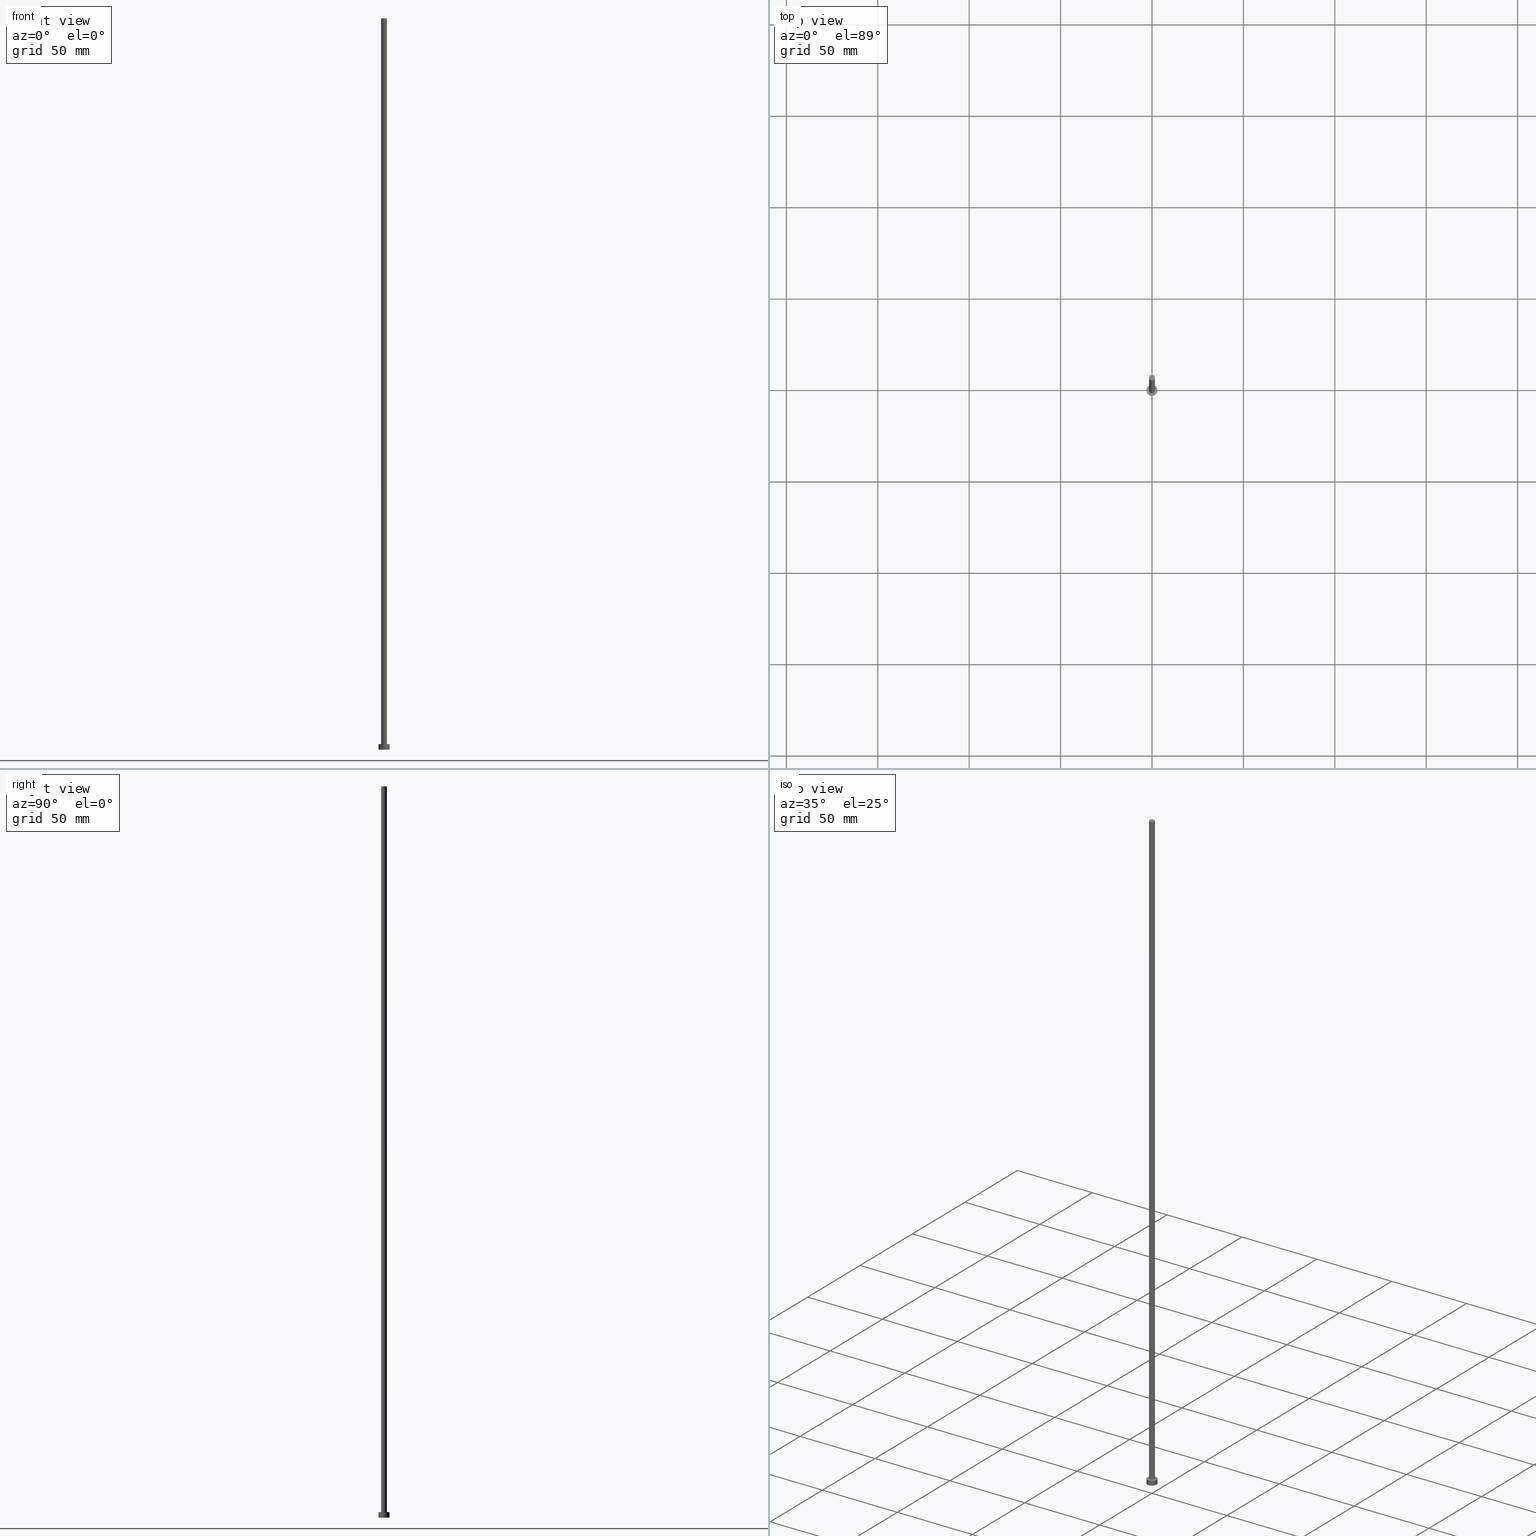
[diagram: canonical four-view strip — front | top / right | iso, engineering-drawing reading convention]
A machine part, canonical four-view strip (front | top / right | iso — engineering-drawing reading convention). The complete STEP part file that produces these views, byte-faithful:
ISO-10303-21;
HEADER;
FILE_DESCRIPTION (( 'STEP AP203' ),
    '1' );
FILE_NAME ('2eab.STEP',
    '2023-02-13T16:24:41',
    ( '' ),
    ( '' ),
    'SwSTEP 2.0',
    'SolidWorks 2019',
    '' );
FILE_SCHEMA (( 'CONFIG_CONTROL_DESIGN' ));
ENDSEC;

DATA;
#1 = PERSON ( 'NEUR�EN�', 'NEUR�EN�', 'NEUR�EN�', ('NEUR�EN�'), ('NEUR�EN�'), ('NEUR�EN�') ) ;
#2 = CIRCLE ( 'NONE', #216, 1.600000000000000089 ) ;
#3 = VERTEX_POINT ( 'NONE', #70 ) ;
#4 = APPROVAL_DATE_TIME ( #176, #106 ) ;
#5 = VERTEX_POINT ( 'NONE', #35 ) ;
#6 = ORIENTED_EDGE ( 'NONE', *, *, #242, .F. ) ;
#7 = AXIS2_PLACEMENT_3D ( 'NONE', #112, #246, #224 ) ;
#8 = ORIENTED_EDGE ( 'NONE', *, *, #85, .F. ) ;
#9 = CARTESIAN_POINT ( 'NONE',  ( 0.000000000000000000, 0.000000000000000000, 0.000000000000000000 ) ) ;
#10 = APPROVAL_ROLE ( '' ) ;
#11 = FACE_OUTER_BOUND ( 'NONE', #76, .T. ) ;
#12 = DIRECTION ( 'NONE',  ( 1.000000000000000000, 0.000000000000000000, 0.000000000000000000 ) ) ;
#13 = DIRECTION ( 'NONE',  ( 1.000000000000000000, 0.000000000000000000, 0.000000000000000000 ) ) ;
#14 = DIRECTION ( 'NONE',  ( 0.000000000000000000, 0.000000000000000000, 1.000000000000000000 ) ) ;
#15 = DIRECTION ( 'NONE',  ( 0.000000000000000000, 0.000000000000000000, 1.000000000000000000 ) ) ;
#16 = CC_DESIGN_APPROVAL ( #19, ( #166 ) ) ;
#17 = CARTESIAN_POINT ( 'NONE',  ( 0.000000000000000000, 0.000000000000000000, 3.000000000000000000 ) ) ;
#18 = ADVANCED_FACE ( 'NONE', ( #143, #47 ), #255, .T. ) ;
#19 = APPROVAL ( #29, 'NEUR�EN�' ) ;
#20 = PERSON_AND_ORGANIZATION ( #1, #91 ) ;
#21 = ADVANCED_FACE ( 'NONE', ( #31 ), #100, .F. ) ;
#22 = CALENDAR_DATE ( 2023, 13, 2 ) ;
#23 = VERTEX_POINT ( 'NONE', #180 ) ;
#24 = PERSON_AND_ORGANIZATION_ROLE ( 'creator' ) ;
#25 = PERSON_AND_ORGANIZATION ( #1, #91 ) ;
#26 = EDGE_LOOP ( 'NONE', ( #34, #56, #43, #97 ) ) ;
#27 = CIRCLE ( 'NONE', #37, 3.000000000000000444 ) ;
#28 = EDGE_CURVE ( 'NONE', #61, #69, #83, .T. ) ;
#29 = APPROVAL_STATUS ( 'not_yet_approved' ) ;
#30 = ORIENTED_EDGE ( 'NONE', *, *, #196, .T. ) ;
#31 = FACE_OUTER_BOUND ( 'NONE', #251, .T. ) ;
#32 = LOCAL_TIME ( 17, 24, 41.00000000000000000, #198 ) ;
#33 = DIRECTION ( 'NONE',  ( 1.000000000000000000, 0.000000000000000000, -0.000000000000000000 ) ) ;
#34 = ORIENTED_EDGE ( 'NONE', *, *, #204, .F. ) ;
#35 = CARTESIAN_POINT ( 'NONE',  ( 1.600000000000000089, 1.959434878635765230E-16, 400.0000000000000000 ) ) ;
#36 = CARTESIAN_POINT ( 'NONE',  ( 0.000000000000000000, 0.000000000000000000, 400.0000000000000000 ) ) ;
#37 = AXIS2_PLACEMENT_3D ( 'NONE', #223, #226, #249 ) ;
#38 = PERSON_AND_ORGANIZATION_ROLE ( 'design_supplier' ) ;
#39 =( NAMED_UNIT ( * ) PLANE_ANGLE_UNIT ( ) SI_UNIT ( $, .RADIAN. ) );
#40 = ORIENTED_EDGE ( 'NONE', *, *, #87, .F. ) ;
#41 = PERSON_AND_ORGANIZATION ( #1, #91 ) ;
#42 = LOCAL_TIME ( 17, 24, 41.00000000000000000, #142 ) ;
#43 = ORIENTED_EDGE ( 'NONE', *, *, #28, .T. ) ;
#44 = CARTESIAN_POINT ( 'NONE',  ( -3.000000000000000444, 0.000000000000000000, 0.000000000000000000 ) ) ;
#45 = ORIENTED_EDGE ( 'NONE', *, *, #87, .T. ) ;
#46 = APPROVAL_PERSON_ORGANIZATION ( #248, #106, #174 ) ;
#47 = FACE_OUTER_BOUND ( 'NONE', #58, .T. ) ;
#48 = CARTESIAN_POINT ( 'NONE',  ( 0.000000000000000000, 0.000000000000000000, 3.000000000000000000 ) ) ;
#49 = AXIS2_PLACEMENT_3D ( 'NONE', #17, #219, #107 ) ;
#50 = DIRECTION ( 'NONE',  ( -0.000000000000000000, -0.000000000000000000, -1.000000000000000000 ) ) ;
#51 = VECTOR ( 'NONE', #134, 1000.000000000000000 ) ;
#52 = FACE_OUTER_BOUND ( 'NONE', #207, .T. ) ;
#53 = AXIS2_PLACEMENT_3D ( 'NONE', #68, #145, #213 ) ;
#54 = LOCAL_TIME ( 17, 24, 41.00000000000000000, #119 ) ;
#55 = CALENDAR_DATE ( 2023, 13, 2 ) ;
#56 = ORIENTED_EDGE ( 'NONE', *, *, #196, .F. ) ;
#57 = MECHANICAL_CONTEXT ( 'NONE', #229, 'mechanical' ) ;
#58 = EDGE_LOOP ( 'NONE', ( #30, #235 ) ) ;
#59 = CIRCLE ( 'NONE', #222, 3.000000000000000444 ) ;
#60 = APPROVAL_STATUS ( 'not_yet_approved' ) ;
#61 = VERTEX_POINT ( 'NONE', #231 ) ;
#62 = PRODUCT ( '2eab', '2eab', '', ( #57 ) ) ;
#63 = EDGE_CURVE ( 'NONE', #114, #69, #239, .T. ) ;
#64 = PERSON_AND_ORGANIZATION_ROLE ( 'creator' ) ;
#65 = CALENDAR_DATE ( 2023, 13, 2 ) ;
#66 = ORIENTED_EDGE ( 'NONE', *, *, #130, .T. ) ;
#67 = DIRECTION ( 'NONE',  ( -0.000000000000000000, -0.000000000000000000, -1.000000000000000000 ) ) ;
#68 = CARTESIAN_POINT ( 'NONE',  ( 0.000000000000000000, 0.000000000000000000, 3.000000000000000000 ) ) ;
#69 = VERTEX_POINT ( 'NONE', #44 ) ;
#70 = CARTESIAN_POINT ( 'NONE',  ( 3.000000000000000444, 3.673940397442060361E-16, 3.000000000000000000 ) ) ;
#71 = CARTESIAN_POINT ( 'NONE',  ( 1.600000000000000089, 1.959434878635765230E-16, 400.0000000000000000 ) ) ;
#72 = DIRECTION ( 'NONE',  ( -1.000000000000000000, 0.000000000000000000, 0.000000000000000000 ) ) ;
#73 = AXIS2_PLACEMENT_3D ( 'NONE', #186, #252, #232 ) ;
#74 = APPROVAL_DATE_TIME ( #92, #177 ) ;
#75 = APPROVAL_ROLE ( '' ) ;
#76 = EDGE_LOOP ( 'NONE', ( #175, #45 ) ) ;
#77 = ORIENTED_EDGE ( 'NONE', *, *, #168, .T. ) ;
#78 = AXIS2_PLACEMENT_3D ( 'NONE', #9, #228, #138 ) ;
#79 = CARTESIAN_POINT ( 'NONE',  ( 0.000000000000000000, 0.000000000000000000, 400.0000000000000000 ) ) ;
#80 = ADVANCED_FACE ( 'NONE', ( #11 ), #103, .T. ) ;
#81 = LOCAL_TIME ( 17, 24, 41.00000000000000000, #206 ) ;
#82 = CARTESIAN_POINT ( 'NONE',  ( 0.000000000000000000, 0.000000000000000000, 3.000000000000000000 ) ) ;
#83 = LINE ( 'NONE', #122, #84 ) ;
#84 = VECTOR ( 'NONE', #167, 1000.000000000000000 ) ;
#85 = EDGE_CURVE ( 'NONE', #137, #5, #230, .T. ) ;
#86 = DIRECTION ( 'NONE',  ( 1.000000000000000000, 0.000000000000000000, 0.000000000000000000 ) ) ;
#87 = EDGE_CURVE ( 'NONE', #5, #137, #2, .T. ) ;
#88 = DIRECTION ( 'NONE',  ( -0.000000000000000000, -0.000000000000000000, -1.000000000000000000 ) ) ;
#89 = FACE_OUTER_BOUND ( 'NONE', #157, .T. ) ;
#90 = AXIS2_PLACEMENT_3D ( 'NONE', #116, #124, #33 ) ;
#91 = ORGANIZATION ( 'NEUR�EN�', 'NEUR�EN�', '' ) ;
#92 = DATE_AND_TIME ( #55, #32 ) ;
#93 = ORIENTED_EDGE ( 'NONE', *, *, #168, .F. ) ;
#94 = DATE_TIME_ROLE ( 'creation_date' ) ;
#95 = CLOSED_SHELL ( 'NONE', ( #188, #179, #109, #18, #21, #217, #80 ) ) ;
#96 = CALENDAR_DATE ( 2023, 13, 2 ) ;
#97 = ORIENTED_EDGE ( 'NONE', *, *, #242, .T. ) ;
#98 = ADVANCED_BREP_SHAPE_REPRESENTATION ( '2eab', ( #121, #78 ), #172 ) ;
#99 = CYLINDRICAL_SURFACE ( 'NONE', #7, 1.600000000000000089 ) ;
#100 = PLANE ( 'NONE',  #90 ) ;
#101 = AXIS2_PLACEMENT_3D ( 'NONE', #187, #15, #86 ) ;
#102 = DIRECTION ( 'NONE',  ( 0.000000000000000000, 0.000000000000000000, 1.000000000000000000 ) ) ;
#103 = PLANE ( 'NONE',  #73 ) ;
#104 = DIRECTION ( 'NONE',  ( -1.000000000000000000, 0.000000000000000000, 0.000000000000000000 ) ) ;
#105 = LINE ( 'NONE', #163, #125 ) ;
#106 = APPROVAL ( #60, 'NEUR�EN�' ) ;
#107 = DIRECTION ( 'NONE',  ( 1.000000000000000000, 0.000000000000000000, 0.000000000000000000 ) ) ;
#108 = DIRECTION ( 'NONE',  ( -0.000000000000000000, -0.000000000000000000, -1.000000000000000000 ) ) ;
#109 = ADVANCED_FACE ( 'NONE', ( #184 ), #164, .T. ) ;
#110 = APPROVAL_STATUS ( 'not_yet_approved' ) ;
#111 = CIRCLE ( 'NONE', #150, 1.600000000000000089 ) ;
#112 = CARTESIAN_POINT ( 'NONE',  ( 0.000000000000000000, 0.000000000000000000, 400.0000000000000000 ) ) ;
#113 = CC_DESIGN_DATE_AND_TIME_ASSIGNMENT ( #144, #209, ( #166 ) ) ;
#114 = VERTEX_POINT ( 'NONE', #234 ) ;
#115 = SECURITY_CLASSIFICATION_LEVEL ( 'unclassified' ) ;
#116 = CARTESIAN_POINT ( 'NONE',  ( 0.000000000000000000, 0.000000000000000000, 0.000000000000000000 ) ) ;
#117 = CARTESIAN_POINT ( 'NONE',  ( -1.600000000000000089, 0.000000000000000000, 400.0000000000000000 ) ) ;
#118 = UNCERTAINTY_MEASURE_WITH_UNIT (LENGTH_MEASURE( 1.000000000000000082E-05 ), #171, 'distance_accuracy_value', 'NONE');
#119 = COORDINATED_UNIVERSAL_TIME_OFFSET ( 1, 0, .AHEAD. ) ;
#120 = ORIENTED_EDGE ( 'NONE', *, *, #126, .T. ) ;
#121 = MANIFOLD_SOLID_BREP ( 'P�idat vysunut�m3', #95 ) ;
#122 = CARTESIAN_POINT ( 'NONE',  ( -3.000000000000000444, 0.000000000000000000, 3.000000000000000000 ) ) ;
#123 = DATE_AND_TIME ( #65, #54 ) ;
#124 = DIRECTION ( 'NONE',  ( 0.000000000000000000, 0.000000000000000000, 1.000000000000000000 ) ) ;
#125 = VECTOR ( 'NONE', #67, 1000.000000000000000 ) ;
#126 = EDGE_CURVE ( 'NONE', #137, #23, #105, .T. ) ;
#127 = CARTESIAN_POINT ( 'NONE',  ( 1.600000000000000089, 1.959434878635765230E-16, 3.000000000000000000 ) ) ;
#128 = CARTESIAN_POINT ( 'NONE',  ( 0.000000000000000000, 0.000000000000000000, 3.000000000000000000 ) ) ;
#129 = CC_DESIGN_DATE_AND_TIME_ASSIGNMENT ( #132, #94, ( #253 ) ) ;
#130 = EDGE_CURVE ( 'NONE', #23, #165, #111, .T. ) ;
#131 = CARTESIAN_POINT ( 'NONE',  ( 3.000000000000000444, 3.673940397442060361E-16, 3.000000000000000000 ) ) ;
#132 = DATE_AND_TIME ( #22, #243 ) ;
#133 = CC_DESIGN_PERSON_AND_ORGANIZATION_ASSIGNMENT ( #41, #38, ( #238 ) ) ;
#134 = DIRECTION ( 'NONE',  ( -0.000000000000000000, -0.000000000000000000, -1.000000000000000000 ) ) ;
#135 = ORIENTED_EDGE ( 'NONE', *, *, #126, .F. ) ;
#136 = VECTOR ( 'NONE', #50, 1000.000000000000000 ) ;
#137 = VERTEX_POINT ( 'NONE', #117 ) ;
#138 = DIRECTION ( 'NONE',  ( 1.000000000000000000, 0.000000000000000000, 0.000000000000000000 ) ) ;
#139 = PERSON_AND_ORGANIZATION ( #1, #91 ) ;
#140 = CIRCLE ( 'NONE', #49, 1.600000000000000089 ) ;
#141 = EDGE_CURVE ( 'NONE', #3, #61, #181, .T. ) ;
#142 = COORDINATED_UNIVERSAL_TIME_OFFSET ( 1, 0, .AHEAD. ) ;
#143 = FACE_BOUND ( 'NONE', #173, .T. ) ;
#144 = DATE_AND_TIME ( #211, #42 ) ;
#145 = DIRECTION ( 'NONE',  ( 0.000000000000000000, 0.000000000000000000, 1.000000000000000000 ) ) ;
#146 = APPROVAL_DATE_TIME ( #123, #19 ) ;
#147 = DIRECTION ( 'NONE',  ( -0.000000000000000000, -0.000000000000000000, -1.000000000000000000 ) ) ;
#148 = AXIS2_PLACEMENT_3D ( 'NONE', #169, #88, #72 ) ;
#149 = CARTESIAN_POINT ( 'NONE',  ( 0.000000000000000000, 0.000000000000000000, 0.000000000000000000 ) ) ;
#150 = AXIS2_PLACEMENT_3D ( 'NONE', #48, #14, #215 ) ;
#151 = CC_DESIGN_PERSON_AND_ORGANIZATION_ASSIGNMENT ( #139, #24, ( #253 ) ) ;
#152 =( NAMED_UNIT ( * ) SI_UNIT ( $, .STERADIAN. ) SOLID_ANGLE_UNIT ( ) );
#153 = ORIENTED_EDGE ( 'NONE', *, *, #130, .F. ) ;
#154 = PERSON_AND_ORGANIZATION_ROLE ( 'classification_officer' ) ;
#155 = ORIENTED_EDGE ( 'NONE', *, *, #63, .F. ) ;
#156 = APPLICATION_PROTOCOL_DEFINITION ( 'international standard', 'config_control_design', 1994, #229 ) ;
#157 = EDGE_LOOP ( 'NONE', ( #205, #225, #254, #227 ) ) ;
#158 = CC_DESIGN_APPROVAL ( #177, ( #253 ) ) ;
#159 = COORDINATED_UNIVERSAL_TIME_OFFSET ( 1, 0, .AHEAD. ) ;
#160 = EDGE_CURVE ( 'NONE', #5, #165, #212, .T. ) ;
#161 = AXIS2_PLACEMENT_3D ( 'NONE', #82, #147, #104 ) ;
#162 = DIRECTION ( 'NONE',  ( 0.000000000000000000, 0.000000000000000000, 1.000000000000000000 ) ) ;
#163 = CARTESIAN_POINT ( 'NONE',  ( -1.600000000000000089, 0.000000000000000000, 400.0000000000000000 ) ) ;
#164 = CYLINDRICAL_SURFACE ( 'NONE', #161, 3.000000000000000444 ) ;
#165 = VERTEX_POINT ( 'NONE', #127 ) ;
#166 = SECURITY_CLASSIFICATION ( '', '', #115 ) ;
#167 = DIRECTION ( 'NONE',  ( -0.000000000000000000, -0.000000000000000000, -1.000000000000000000 ) ) ;
#168 = EDGE_CURVE ( 'NONE', #165, #23, #140, .T. ) ;
#169 = CARTESIAN_POINT ( 'NONE',  ( 0.000000000000000000, 0.000000000000000000, 3.000000000000000000 ) ) ;
#170 = AXIS2_PLACEMENT_3D ( 'NONE', #149, #102, #13 ) ;
#171 =( LENGTH_UNIT ( ) NAMED_UNIT ( * ) SI_UNIT ( .MILLI., .METRE. ) );
#172 =( GEOMETRIC_REPRESENTATION_CONTEXT ( 3 ) GLOBAL_UNCERTAINTY_ASSIGNED_CONTEXT ( ( #118 ) ) GLOBAL_UNIT_ASSIGNED_CONTEXT ( ( #171, #39, #152 ) ) REPRESENTATION_CONTEXT ( 'NONE', 'WORKASPACE' ) );
#173 = EDGE_LOOP ( 'NONE', ( #153, #93 ) ) ;
#174 = APPROVAL_ROLE ( '' ) ;
#175 = ORIENTED_EDGE ( 'NONE', *, *, #85, .T. ) ;
#176 = DATE_AND_TIME ( #96, #81 ) ;
#177 = APPROVAL ( #110, 'NEUR�EN�' ) ;
#178 = PERSON_AND_ORGANIZATION ( #1, #91 ) ;
#179 = ADVANCED_FACE ( 'NONE', ( #89 ), #190, .T. ) ;
#180 = CARTESIAN_POINT ( 'NONE',  ( -1.600000000000000089, 0.000000000000000000, 3.000000000000000000 ) ) ;
#181 = CIRCLE ( 'NONE', #101, 3.000000000000000444 ) ;
#182 = DIRECTION ( 'NONE',  ( 1.000000000000000000, 0.000000000000000000, 0.000000000000000000 ) ) ;
#183 = PRODUCT_RELATED_PRODUCT_CATEGORY ( 'detail', '', ( #62 ) ) ;
#184 = FACE_OUTER_BOUND ( 'NONE', #26, .T. ) ;
#185 = SHAPE_DEFINITION_REPRESENTATION ( #236, #98 ) ;
#186 = CARTESIAN_POINT ( 'NONE',  ( 0.000000000000000000, 0.000000000000000000, 400.0000000000000000 ) ) ;
#187 = CARTESIAN_POINT ( 'NONE',  ( 0.000000000000000000, 0.000000000000000000, 3.000000000000000000 ) ) ;
#188 = ADVANCED_FACE ( 'NONE', ( #52 ), #220, .T. ) ;
#189 = AXIS2_PLACEMENT_3D ( 'NONE', #36, #108, #192 ) ;
#190 = CYLINDRICAL_SURFACE ( 'NONE', #148, 3.000000000000000444 ) ;
#191 = CC_DESIGN_PERSON_AND_ORGANIZATION_ASSIGNMENT ( #244, #203, ( #62 ) ) ;
#192 = DIRECTION ( 'NONE',  ( -1.000000000000000000, 0.000000000000000000, 0.000000000000000000 ) ) ;
#193 = APPROVAL_PERSON_ORGANIZATION ( #250, #19, #10 ) ;
#194 = LINE ( 'NONE', #131, #51 ) ;
#195 = DESIGN_CONTEXT ( 'detailed design', #240, 'design' ) ;
#196 = EDGE_CURVE ( 'NONE', #61, #3, #59, .T. ) ;
#197 = AXIS2_PLACEMENT_3D ( 'NONE', #79, #162, #182 ) ;
#198 = COORDINATED_UNIVERSAL_TIME_OFFSET ( 1, 0, .AHEAD. ) ;
#199 = EDGE_LOOP ( 'NONE', ( #202, #8, #120, #66 ) ) ;
#200 = APPLICATION_PROTOCOL_DEFINITION ( 'international standard', 'config_control_design', 1994, #240 ) ;
#201 = CC_DESIGN_APPROVAL ( #106, ( #238 ) ) ;
#202 = ORIENTED_EDGE ( 'NONE', *, *, #160, .F. ) ;
#203 = PERSON_AND_ORGANIZATION_ROLE ( 'design_owner' ) ;
#204 = EDGE_CURVE ( 'NONE', #3, #114, #194, .T. ) ;
#205 = ORIENTED_EDGE ( 'NONE', *, *, #141, .F. ) ;
#206 = COORDINATED_UNIVERSAL_TIME_OFFSET ( 1, 0, .AHEAD. ) ;
#207 = EDGE_LOOP ( 'NONE', ( #40, #247, #77, #135 ) ) ;
#208 = CC_DESIGN_SECURITY_CLASSIFICATION ( #166, ( #238 ) ) ;
#209 = DATE_TIME_ROLE ( 'classification_date' ) ;
#210 = DIRECTION ( 'NONE',  ( 0.000000000000000000, 0.000000000000000000, 1.000000000000000000 ) ) ;
#211 = CALENDAR_DATE ( 2023, 13, 2 ) ;
#212 = LINE ( 'NONE', #71, #136 ) ;
#213 = DIRECTION ( 'NONE',  ( 1.000000000000000000, 0.000000000000000000, -0.000000000000000000 ) ) ;
#214 = APPROVAL_PERSON_ORGANIZATION ( #25, #177, #75 ) ;
#215 = DIRECTION ( 'NONE',  ( 1.000000000000000000, 0.000000000000000000, 0.000000000000000000 ) ) ;
#216 = AXIS2_PLACEMENT_3D ( 'NONE', #233, #210, #12 ) ;
#217 = ADVANCED_FACE ( 'NONE', ( #245 ), #99, .T. ) ;
#218 = CC_DESIGN_PERSON_AND_ORGANIZATION_ASSIGNMENT ( #20, #154, ( #166 ) ) ;
#219 = DIRECTION ( 'NONE',  ( 0.000000000000000000, 0.000000000000000000, 1.000000000000000000 ) ) ;
#220 = CYLINDRICAL_SURFACE ( 'NONE', #189, 1.600000000000000089 ) ;
#221 = DIRECTION ( 'NONE',  ( 1.000000000000000000, 0.000000000000000000, 0.000000000000000000 ) ) ;
#222 = AXIS2_PLACEMENT_3D ( 'NONE', #128, #241, #221 ) ;
#223 = CARTESIAN_POINT ( 'NONE',  ( 0.000000000000000000, 0.000000000000000000, 0.000000000000000000 ) ) ;
#224 = DIRECTION ( 'NONE',  ( -1.000000000000000000, 0.000000000000000000, 0.000000000000000000 ) ) ;
#225 = ORIENTED_EDGE ( 'NONE', *, *, #204, .T. ) ;
#226 = DIRECTION ( 'NONE',  ( 0.000000000000000000, 0.000000000000000000, 1.000000000000000000 ) ) ;
#227 = ORIENTED_EDGE ( 'NONE', *, *, #28, .F. ) ;
#228 = DIRECTION ( 'NONE',  ( 0.000000000000000000, 0.000000000000000000, 1.000000000000000000 ) ) ;
#229 = APPLICATION_CONTEXT ( 'configuration controlled 3d designs of mechanical parts and assemblies' ) ;
#230 = CIRCLE ( 'NONE', #197, 1.600000000000000089 ) ;
#231 = CARTESIAN_POINT ( 'NONE',  ( -3.000000000000000444, 0.000000000000000000, 3.000000000000000000 ) ) ;
#232 = DIRECTION ( 'NONE',  ( 1.000000000000000000, 0.000000000000000000, -0.000000000000000000 ) ) ;
#233 = CARTESIAN_POINT ( 'NONE',  ( 0.000000000000000000, 0.000000000000000000, 400.0000000000000000 ) ) ;
#234 = CARTESIAN_POINT ( 'NONE',  ( 3.000000000000000444, 3.673940397442060361E-16, 0.000000000000000000 ) ) ;
#235 = ORIENTED_EDGE ( 'NONE', *, *, #141, .T. ) ;
#236 = PRODUCT_DEFINITION_SHAPE ( 'NONE', 'NONE',  #253 ) ;
#237 = CC_DESIGN_PERSON_AND_ORGANIZATION_ASSIGNMENT ( #178, #64, ( #238 ) ) ;
#238 = PRODUCT_DEFINITION_FORMATION_WITH_SPECIFIED_SOURCE ( 'LIBOVOLN�', '', #62, .NOT_KNOWN. ) ;
#239 = CIRCLE ( 'NONE', #170, 3.000000000000000444 ) ;
#240 = APPLICATION_CONTEXT ( 'configuration controlled 3d designs of mechanical parts and assemblies' ) ;
#241 = DIRECTION ( 'NONE',  ( 0.000000000000000000, 0.000000000000000000, 1.000000000000000000 ) ) ;
#242 = EDGE_CURVE ( 'NONE', #69, #114, #27, .T. ) ;
#243 = LOCAL_TIME ( 17, 24, 41.00000000000000000, #159 ) ;
#244 = PERSON_AND_ORGANIZATION ( #1, #91 ) ;
#245 = FACE_OUTER_BOUND ( 'NONE', #199, .T. ) ;
#246 = DIRECTION ( 'NONE',  ( -0.000000000000000000, -0.000000000000000000, -1.000000000000000000 ) ) ;
#247 = ORIENTED_EDGE ( 'NONE', *, *, #160, .T. ) ;
#248 = PERSON_AND_ORGANIZATION ( #1, #91 ) ;
#249 = DIRECTION ( 'NONE',  ( 1.000000000000000000, 0.000000000000000000, 0.000000000000000000 ) ) ;
#250 = PERSON_AND_ORGANIZATION ( #1, #91 ) ;
#251 = EDGE_LOOP ( 'NONE', ( #6, #155 ) ) ;
#252 = DIRECTION ( 'NONE',  ( 0.000000000000000000, 0.000000000000000000, 1.000000000000000000 ) ) ;
#253 = PRODUCT_DEFINITION ( 'NEZN�M�', '', #238, #195 ) ;
#254 = ORIENTED_EDGE ( 'NONE', *, *, #63, .T. ) ;
#255 = PLANE ( 'NONE',  #53 ) ;
ENDSEC;
END-ISO-10303-21;
